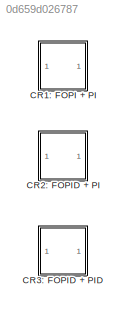
MODEL slx_0d659d026787
KIND model
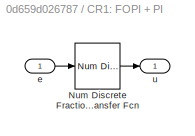
BLOCK [SubSystem] CR1: FOPI + PI
  FunctionWithSeparateData = off
  MaskHideContents = off
  MinAlgLoopOccurrences = off
  Opaque = off
  Ports = [1, 1]
  PropExecContextOutsideSubsystem = off
  RTWSystemCode = Auto
  RequestExecContextInheritance = off
BLOCK [Reference] CR1: FOPI + PI/Num Discrete Fractional Transfer Fcn  REF=fod/Num Discrete  (lib defined in slx_5cb2d42c7bef)
Fractional Transfer Fcn
  Ports = [1, 1]
  SourceBlock = fod/Num Discrete\nFractional Transfer Fcn
  SourceType = Discrete Fractional Transfer Function (numerical polynomial coefficient/exponents)
  a = [Kp Ki]
  approxNum = 5
  b = [Kis (Kps-Kp) -Ki]
  dscrMethod = Matched
  freqRange = [0.001, 1000]
  na = [1 0]
  nb = [1-lambda 1 0]
  ts = Ts
  useRef = off
  wc = 0
BLOCK [Inport] CR1: FOPI + PI/e
  IconDisplay = Port number
BLOCK [Outport] CR1: FOPI + PI/u
  IconDisplay = Port number
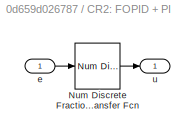
BLOCK [SubSystem] CR2: FOPID + PI
  FunctionWithSeparateData = off
  MaskHideContents = off
  MinAlgLoopOccurrences = off
  Opaque = off
  Ports = [1, 1]
  PropExecContextOutsideSubsystem = off
  RTWSystemCode = Auto
  RequestExecContextInheritance = off
BLOCK [Reference] CR2: FOPID + PI/Num Discrete Fractional Transfer Fcn  REF=fod/Num Discrete  (lib defined in slx_5cb2d42c7bef)
Fractional Transfer Fcn
  Ports = [1, 1]
  SourceBlock = fod/Num Discrete\nFractional Transfer Fcn
  SourceType = Discrete Fractional Transfer Function (numerical polynomial coefficient/exponents)
  a = [Kp Ki]
  approxNum = 5
  b = [Kds Kis (Kps-Kp) -Ki]
  dscrMethod = Matched
  freqRange = [0.001, 1000]
  na = [1 0]
  nb = [mu+1 1-lambda 1 0]
  ts = Ts
  useRef = off
  wc = 0
BLOCK [Inport] CR2: FOPID + PI/e
  IconDisplay = Port number
BLOCK [Outport] CR2: FOPID + PI/u
  IconDisplay = Port number
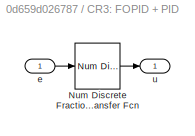
BLOCK [SubSystem] CR3: FOPID + PID
  FunctionWithSeparateData = off
  MaskHideContents = off
  MinAlgLoopOccurrences = off
  Opaque = off
  Ports = [1, 1]
  PropExecContextOutsideSubsystem = off
  RTWSystemCode = Auto
  RequestExecContextInheritance = off
BLOCK [Reference] CR3: FOPID + PID/Num Discrete Fractional Transfer Fcn  REF=fod/Num Discrete  (lib defined in slx_5cb2d42c7bef)
Fractional Transfer Fcn
  Ports = [1, 1]
  SourceBlock = fod/Num Discrete\nFractional Transfer Fcn
  SourceType = Discrete Fractional Transfer Function (numerical polynomial coefficient/exponents)
  a = [Kd Kp Ki]
  approxNum = 5
  b = [Kds Kis -Kd (Kps-Kp) -Ki]
  dscrMethod = Matched
  freqRange = [0.001, 1000]
  na = [2 1 0]
  nb = [mu+1 1-lambda 2 1 0]
  ts = Ts
  useRef = off
  wc = 0
BLOCK [Inport] CR3: FOPID + PID/e
  IconDisplay = Port number
BLOCK [Outport] CR3: FOPID + PID/u
  IconDisplay = Port number
LINE CR1: FOPI + PI/Num Discrete Fractional Transfer Fcn:1 -> CR1: FOPI + PI/u:1
LINE CR1: FOPI + PI/e:1 -> CR1: FOPI + PI/Num Discrete Fractional Transfer Fcn:1
LINE CR2: FOPID + PI/Num Discrete Fractional Transfer Fcn:1 -> CR2: FOPID + PI/u:1
LINE CR2: FOPID + PI/e:1 -> CR2: FOPID + PI/Num Discrete Fractional Transfer Fcn:1
LINE CR3: FOPID + PID/Num Discrete Fractional Transfer Fcn:1 -> CR3: FOPID + PID/u:1
LINE CR3: FOPID + PID/e:1 -> CR3: FOPID + PID/Num Discrete Fractional Transfer Fcn:1
